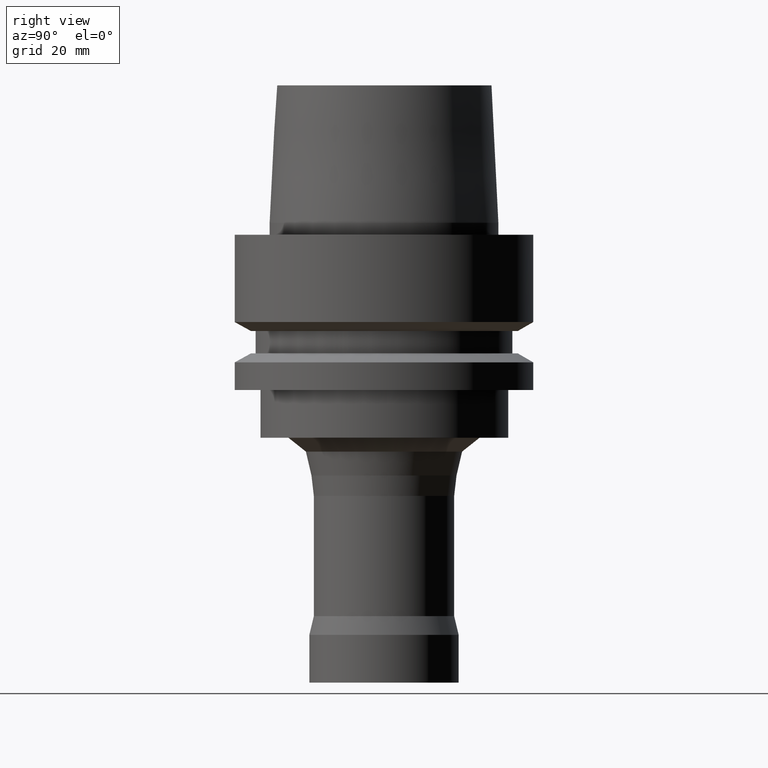
[diagram: clean part render]
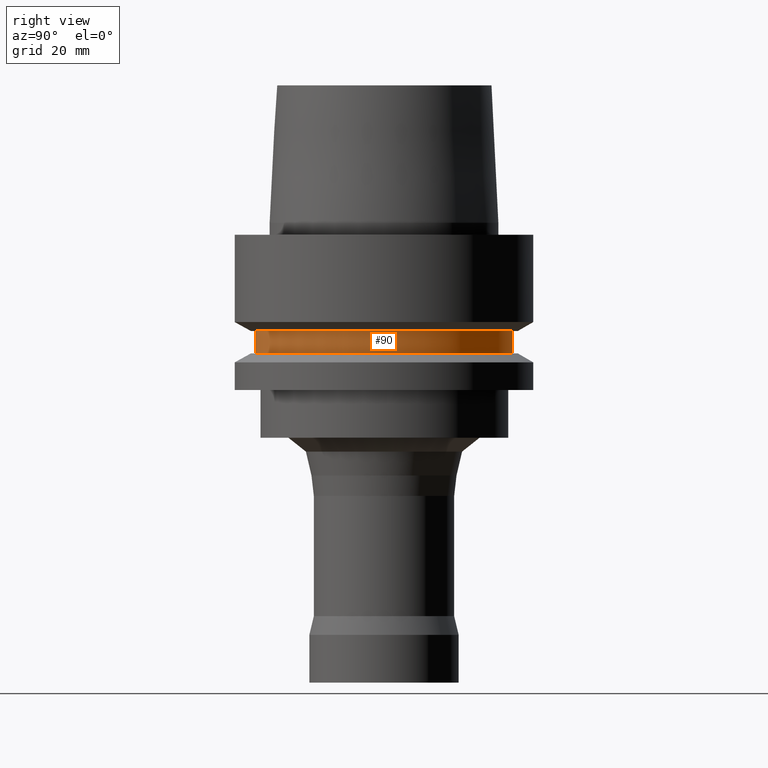
[diagram: same view with one face highlighted and labeled with its STEP entity id]
A machine part, right view. The second image highlights one B-rep face of the part: STEP entity #90.
In plain terms, the highlighted cylindrical surface (bore or boss wall) has radius 21.5 mm, axis along (-0, -0, 1).
Its self-contained STEP definition (entity closure, byte-faithful):
#90=ADVANCED_FACE('',(#140,#141),#142,.T.);
#140=FACE_BOUND('',#201,.T.);
#141=FACE_BOUND('',#202,.T.);
#142=CYLINDRICAL_SURFACE('',#203,21.5);
#201=EDGE_LOOP('',(#292));
#202=EDGE_LOOP('',(#293));
#203=AXIS2_PLACEMENT_3D('',#294,#295,#296);
#292=ORIENTED_EDGE('',*,*,#337,.F.);
#293=ORIENTED_EDGE('',*,*,#336,.T.);
#294=CARTESIAN_POINT('',(1.10218211923262E-015,2.20436423846524E-015,-18.0));
#295=DIRECTION('',(-6.12323399573677E-017,-1.22464679914735E-016,1.0));
#296=DIRECTION('',(-1.23259516440783E-032,1.0,1.22464679914735E-016));
#336=EDGE_CURVE('',#370,#370,#371,.T.);
#337=EDGE_CURVE('',#372,#372,#373,.T.);
#370=VERTEX_POINT('',#410);
#371=CIRCLE('',#411,21.5);
#372=VERTEX_POINT('',#412);
#373=CIRCLE('',#413,21.5);
#410=CARTESIAN_POINT('',(9.87371481812553E-016,21.5,-16.125));
#411=AXIS2_PLACEMENT_3D('',#464,#465,#466);
#412=CARTESIAN_POINT('',(1.21699275665268E-015,21.5,-19.875));
#413=AXIS2_PLACEMENT_3D('',#467,#468,#469);
#464=CARTESIAN_POINT('',(9.87371481812554E-016,1.97474296362511E-015,-16.125));
#465=DIRECTION('',(6.12323399573677E-017,1.22464679914735E-016,-1.0));
#466=DIRECTION('',(-1.23259516440783E-032,1.0,1.22464679914735E-016));
#467=CARTESIAN_POINT('',(1.21699275665268E-015,2.43398551330536E-015,-19.875));
#468=DIRECTION('',(6.12323399573677E-017,1.22464679914735E-016,-1.0));
#469=DIRECTION('',(-1.23259516440783E-032,1.0,1.22464679914735E-016));